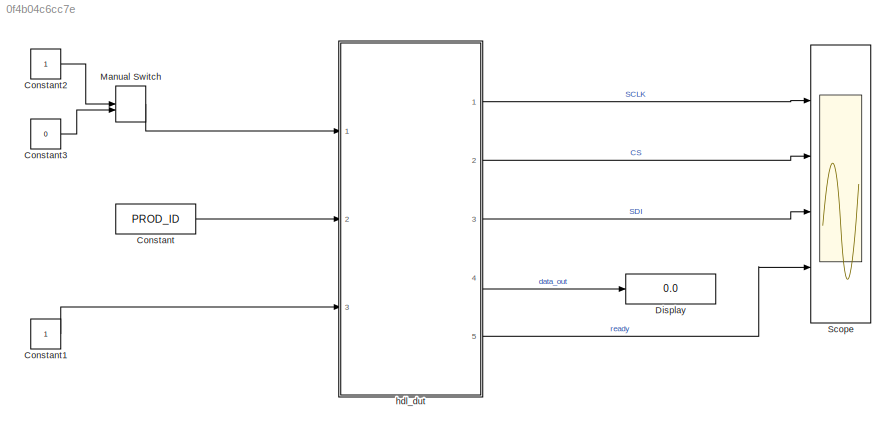
MODEL slx_0f4b04c6cc7e
KIND model
BLOCK [Constant] Constant
  OutDataTypeStr = fixdt(0,16,0)
  SampleTime = -1
  Value = PROD_ID
BLOCK [Constant] Constant1
  OutDataTypeStr = boolean
  SampleTime = -1
BLOCK [Constant] Constant2
  OutDataTypeStr = boolean
  SampleTime = -1
BLOCK [Constant] Constant3
  OutDataTypeStr = boolean
  SampleTime = -1
  Value = 0
BLOCK [Display] Display
  Decimation = 1
  Ports = [1]
BLOCK [ManualSwitch] Manual Switch
BLOCK [Scope] Scope
  Floating = off
  LimitDataPoints = off
  NumInputPorts = 4
  Ports = [4]
  ShowLegends = off
  YMax = 2~2~2~5
  YMin = -2~-2~-2~-5
  ZoomMode = xonly
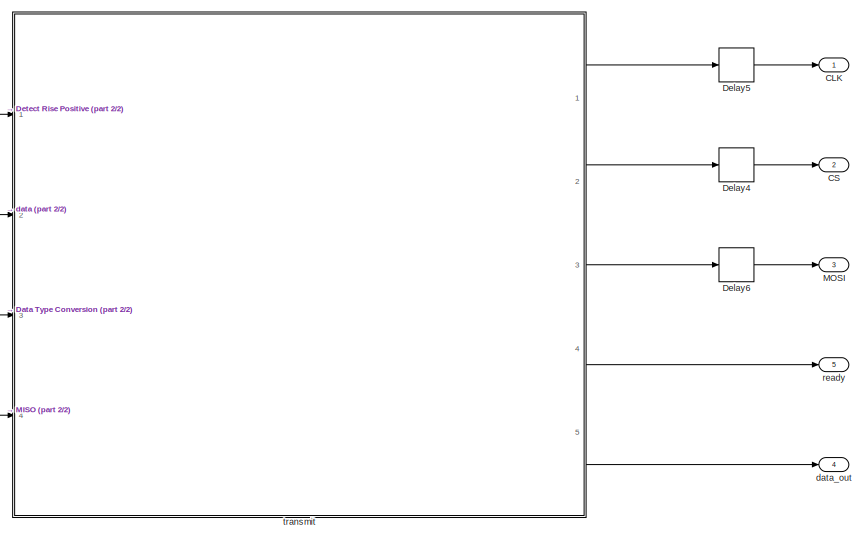
[diagram: hdl_dut - part 1/2, right side, full height]
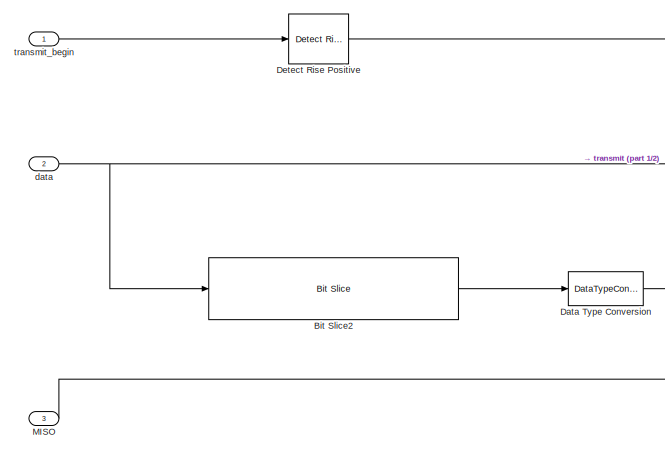
[diagram: hdl_dut - part 2/2, left side, full height]
BLOCK [SubSystem] hdl_dut
  Ports = [3, 5]
  RequestExecContextInheritance = off
  TreatAsAtomicUnit = on
BLOCK [Reference] hdl_dut/Bit Slice2  REF=hdlsllib/HDL Operations/Bit Slice
  Ports = [1, 1]
  SourceBlock = hdlsllib/HDL Operations/Bit Slice
  SourceType = Bit Slice
  lidx = message_length-1
  ridx = message_length-1
BLOCK [Outport] hdl_dut/CLK
  IconDisplay = Port number
BLOCK [Outport] hdl_dut/CS
  IconDisplay = Port number
  Port = 2
BLOCK [DataTypeConversion] hdl_dut/Data Type Conversion
  RndMeth = Floor
  SaturateOnIntegerOverflow = off
BLOCK [Delay] hdl_dut/Delay4
  DelayLength = 1
  InitialCondition = 1
  InputPortMap = u0
  Ports = [1, 1]
BLOCK [Delay] hdl_dut/Delay5
  DelayLength = 1
  InitialCondition = 1
  InputPortMap = u0
  Ports = [1, 1]
BLOCK [Delay] hdl_dut/Delay6
  DelayLength = 1
  InitialCondition = 0
  InputPortMap = u0
  Ports = [1, 1]
BLOCK [Reference] hdl_dut/Detect Rise Positive  REF=simulink/Logic and Bit
Operations/Detect Rise
Positive
  InputProcessing = Inherited
  OutDataTypeStr = boolean
  Ports = [1, 1]
  SourceBlock = simulink/Logic and Bit\nOperations/Detect Rise\nPositive
  SourceType = Detect Rise Positive
  vinit = 0
BLOCK [Inport] hdl_dut/MISO
  IconDisplay = Port number
  Port = 3
BLOCK [Outport] hdl_dut/MOSI
  IconDisplay = Port number
  Port = 3
BLOCK [Inport] hdl_dut/data
  IconDisplay = Port number
  Port = 2
BLOCK [Outport] hdl_dut/data_out
  IconDisplay = Port number
  Port = 4
BLOCK [Outport] hdl_dut/ready
  IconDisplay = Port number
  Port = 5
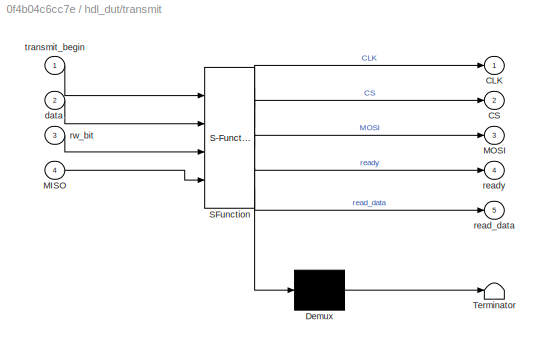
BLOCK [SubSystem] hdl_dut/transmit
  ErrorFcn = Stateflow.Translate.translate
  PermitHierarchicalResolution = ExplicitOnly
  Ports = [4, 5]
  RequestExecContextInheritance = off
  SFBlockType = Chart
  TreatAsAtomicUnit = on
BLOCK [Demux] hdl_dut/transmit/ Demux 
  Outputs = 1
  Ports = [1, 1]
BLOCK [S-Function] hdl_dut/transmit/ SFunction 
  EnableBusSupport = on
  FunctionName = sf_sfun
  Parameters = clk_freq,cs_to_clk_edge,message_length,stall_time
  PortCounts = [4 6]
  Ports = [4, 6]
  Tag = Stateflow S-Function SPIcontroller 2
BLOCK [Terminator] hdl_dut/transmit/ Terminator 
BLOCK [Outport] hdl_dut/transmit/CLK
  IconDisplay = Port number
BLOCK [Outport] hdl_dut/transmit/CS
  IconDisplay = Port number
  Port = 2
BLOCK [Inport] hdl_dut/transmit/MISO
  IconDisplay = Port number
  Port = 4
BLOCK [Outport] hdl_dut/transmit/MOSI
  IconDisplay = Port number
  Port = 3
BLOCK [Inport] hdl_dut/transmit/data
  IconDisplay = Port number
  Port = 2
BLOCK [Outport] hdl_dut/transmit/read_data
  IconDisplay = Port number
  Port = 5
BLOCK [Outport] hdl_dut/transmit/ready
  IconDisplay = Port number
  Port = 4
BLOCK [Inport] hdl_dut/transmit/rw_bit
  IconDisplay = Port number
  Port = 3
BLOCK [Inport] hdl_dut/transmit/transmit_begin
  IconDisplay = Port number
BLOCK [Inport] hdl_dut/transmit_begin
  IconDisplay = Port number
LINE Constant1:1 -> hdl_dut:3
LINE Constant2:1 -> Manual Switch:1
LINE Constant3:1 -> Manual Switch:2
LINE Constant:1 -> hdl_dut:2
LINE Manual Switch:1 -> hdl_dut:1
LINE hdl_dut/Bit Slice2:1 -> hdl_dut/Data Type Conversion:1
LINE hdl_dut/Data Type Conversion:1 -> hdl_dut/transmit:3
LINE hdl_dut/Delay4:1 -> hdl_dut/CS:1
LINE hdl_dut/Delay5:1 -> hdl_dut/CLK:1
LINE hdl_dut/Delay6:1 -> hdl_dut/MOSI:1
LINE hdl_dut/Detect Rise Positive:1 -> hdl_dut/transmit:1
LINE hdl_dut/MISO:1 -> hdl_dut/transmit:4
NET hdl_dut/data:1 -> hdl_dut/Bit Slice2:1, hdl_dut/transmit:2
LINE hdl_dut/transmit:1 -> hdl_dut/Delay5:1
LINE hdl_dut/transmit:2 -> hdl_dut/Delay4:1
LINE hdl_dut/transmit:3 -> hdl_dut/Delay6:1
LINE hdl_dut/transmit:4 -> hdl_dut/ready:1
LINE hdl_dut/transmit:5 -> hdl_dut/data_out:1
LINE hdl_dut/transmit_begin:1 -> hdl_dut/Detect Rise Positive:1
LINE hdl_dut:1 -> Scope:1
LINE hdl_dut:2 -> Scope:2
LINE hdl_dut:3 -> Scope:3
LINE hdl_dut:4 -> Display:1
LINE hdl_dut:5 -> Scope:4
note: NET lines group one-source signal fan-out (src -> all destinations, sorted); 1:1 wires keep LINE
CHART hdl_dut/transmit states=23 transitions=41
  STATE_LABEL 'IDLE\n'
  STATE_LABEL 'ser_data = sdi_gen(word,cnt)'
  STATE_LABEL 'SCRIPT:\nfunction ser_data = sdi_gen(word,cnt)\n\n\npersistent ser_data_int;\nif isempty(ser_data_int)\n    ser_data_int = false;\nend\n\n\nif cnt == fi(1,0,5,0)\n    ser_data_int = logical(bitget(word, 16));\nelseif cnt == fi(2,0,5,0)\n    ser_data_int = logical(bitget(word, 15));\nelseif cnt == fi(3,0,5,0)\n    ser_data_int = logical(bitget(word, 14));\nelseif cnt == fi(4,0,5,0)\n    ser_data_int = logical(bitge...<+945ch>'
  STATE_LABEL 'BEGIN'
  STATE_LABEL 'CHIPSELECT'
  STATE_LABEL 'WRITE'
  STATE_LABEL 'CLOCK_BEGIN'
  STATE_LABEL 'CLOCK_HIGH'
  STATE_LABEL 'CLOCK_LOW'
  STATE_LABEL 'CLOCK_END'
  STATE_LABEL '{CLK = false;\nbit_count = 0;}'
  STATE_LABEL '[count == clk_wait]\n{CLK = 1; count = 0;bit_count ++;\nMOSI = sdi_gen(data, bit_count);}'
  STATE_LABEL '{count++;}'
  STATE_LABEL '{count++;}'
  STATE_LABEL '[count == clk_wait]\n{CLK = 0; count = 0;}'
  STATE_LABEL '[bit_count == message_length]\n{count = 0; transmit_flag = 0; MOSI = 0;}'
  STATE_LABEL 'CLOCK_BEGIN'
  STATE_LABEL 'CLOCK_HIGH'
  STATE_LABEL 'CLOCK_LOW'
  STATE_LABEL 'CLOCK_END'
  STATE_LABEL 'READ'
  STATE_LABEL 'CLOCK_BEGIN1'
  STATE_LABEL 'BEGIN_READ'
  STATE_LABEL 'CLOCK_HIGH1'
  STATE_LABEL 'CLOCK_LOW1'
  STATE_LABEL 'CS_LOW'
  STATE_LABEL 'CLOCK_BEGIN2'
  STATE_LABEL 'CLOCK_END1'
  STATE_LABEL 'STALL1'
  STATE_LABEL 'CLOCK_HIGH2'
  STATE_LABEL 'CLOCK_LOW2'
  STATE_LABEL 'CLOCK_END2'
  STATE_LABEL '{CLK = false;\nbit_count = 0;}'
  STATE_LABEL '[count == stall_wait]\n{count = 0;}'
  STATE_LABEL '{count++;}'
  STATE_LABEL '[count == clk_wait]\n{CLK = 1; count = 0;bit_count ++;\nMOSI = sdi_gen(data, bit_count);}'
  STATE_LABEL '{count++;}'
  STATE_LABEL '{count++;}'
  STATE_LABEL '[count == 10]{CS = 0;count = 0;}'
  STATE_LABEL '[count == clk_wait]\n{CLK = 0; count = 0;}'
